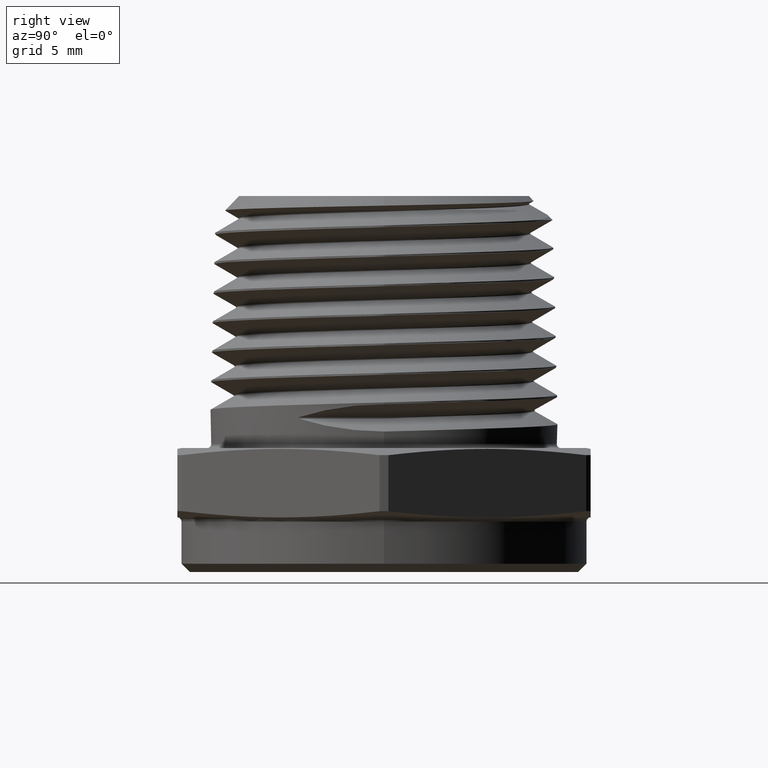
[diagram: clean part render]
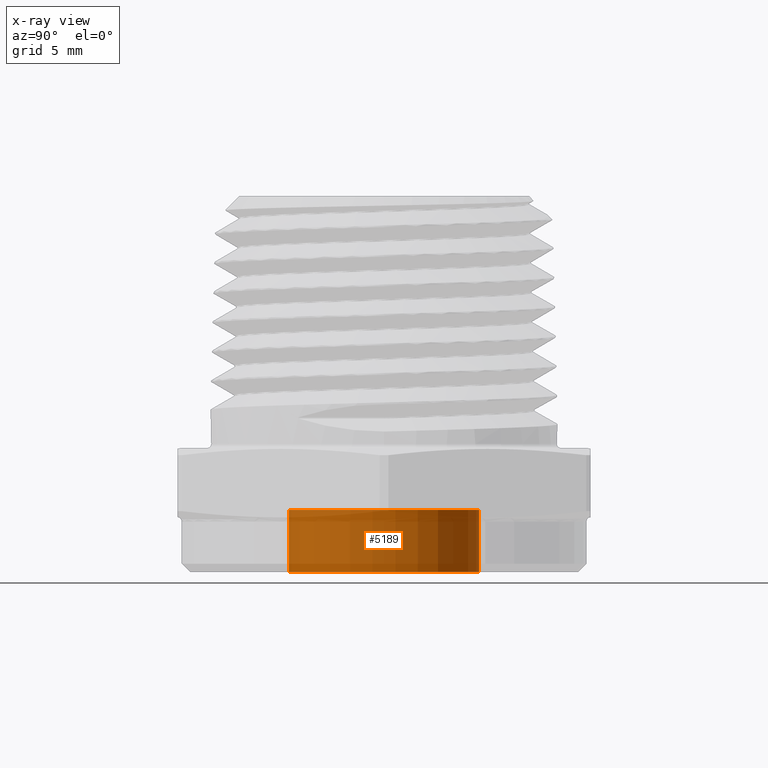
[diagram: x-ray — body ghosted, one internal face saturated and labeled with its STEP entity id]
A machine part, right view, then the same camera in x-ray: the body is ghosted and one INTERNAL B-rep face — a face not visible from any outside direction — is saturated and labeled: STEP entity #5189.
In plain terms, the highlighted cylindrical surface (partial cylindrical patch) has radius 5.842 mm, axis along (-0, -0, 1).
Its self-contained STEP definition (entity closure, byte-faithful):
#230 = VERTEX_POINT ( 'NONE', #4884 ) ;
#232 = VERTEX_POINT ( 'NONE', #4886 ) ;
#233 = VERTEX_POINT ( 'NONE', #4887 ) ;
#234 = VERTEX_POINT ( 'NONE', #4888 ) ;
#300 = EDGE_LOOP ( 'NONE', ( #3851, #3850, #314, #305 ) ) ;
#305 = ORIENTED_EDGE ( 'NONE', *, *, #2914, .F. ) ;
#314 = ORIENTED_EDGE ( 'NONE', *, *, #2915, .T. ) ;
#2340 = CARTESIAN_POINT ( 'NONE',  ( 0.0000000000000000000, 0.1499999999999999900, 0.0000000000000000000 ) ) ;
#2399 = DIRECTION ( 'NONE',  ( -0.0000000000000000000, -1.000000000000000000, -0.0000000000000000000 ) ) ;
#2433 = DIRECTION ( 'NONE',  ( 0.0000000000000000000, 0.0000000000000000000, -1.000000000000000000 ) ) ;
#2497 = AXIS2_PLACEMENT_3D ( 'NONE', #2340, #2399, #2433 ) ;
#2622 = CIRCLE ( 'NONE', #3053, 0.2300000000000000100 ) ;
#2632 = VECTOR ( 'NONE', #4899, 39.37007874015748100 ) ;
#2634 = VECTOR ( 'NONE', #4897, 39.37007874015748100 ) ;
#2635 = LINE ( 'NONE', #4895, #2634 ) ;
#2636 = CIRCLE ( 'NONE', #3052, 0.2300000000000000100 ) ;
#2637 = LINE ( 'NONE', #4896, #2632 ) ;
#2782 = FACE_OUTER_BOUND ( 'NONE', #300, .T. ) ;
#2785 = CYLINDRICAL_SURFACE ( 'NONE', #2497, 0.2300000000000000100 ) ;
#2913 = EDGE_CURVE ( 'NONE', #232, #233, #2635, .T. ) ;
#2914 = EDGE_CURVE ( 'NONE', #230, #234, #2637, .T. ) ;
#2915 = EDGE_CURVE ( 'NONE', #233, #234, #2636, .T. ) ;
#2916 = EDGE_CURVE ( 'NONE', #232, #230, #2622, .T. ) ;
#3052 = AXIS2_PLACEMENT_3D ( 'NONE', #4900, #4901, #4902 ) ;
#3053 = AXIS2_PLACEMENT_3D ( 'NONE', #4904, #4905, #4906 ) ;
#3850 = ORIENTED_EDGE ( 'NONE', *, *, #2913, .T. ) ;
#3851 = ORIENTED_EDGE ( 'NONE', *, *, #2916, .F. ) ;
#4884 = CARTESIAN_POINT ( 'NONE',  ( 0.0000000000000000000, 0.1499999999999999900, -0.2300000000000000100 ) ) ;
#4886 = CARTESIAN_POINT ( 'NONE',  ( 2.816687638038911700E-017, 0.1499999999999999900, 0.2300000000000000100 ) ) ;
#4887 = CARTESIAN_POINT ( 'NONE',  ( 2.816687638038911700E-017, 0.0000000000000000000, 0.2300000000000000100 ) ) ;
#4888 = CARTESIAN_POINT ( 'NONE',  ( 0.0000000000000000000, 0.0000000000000000000, -0.2300000000000000100 ) ) ;
#4895 = CARTESIAN_POINT ( 'NONE',  ( 2.816687638038911700E-017, 0.1499999999999999900, 0.2300000000000000100 ) ) ;
#4896 = CARTESIAN_POINT ( 'NONE',  ( 0.0000000000000000000, 0.1499999999999999900, -0.2300000000000000100 ) ) ;
#4897 = DIRECTION ( 'NONE',  ( -0.0000000000000000000, -1.000000000000000000, -0.0000000000000000000 ) ) ;
#4899 = DIRECTION ( 'NONE',  ( -0.0000000000000000000, -1.000000000000000000, -0.0000000000000000000 ) ) ;
#4900 = CARTESIAN_POINT ( 'NONE',  ( 0.0000000000000000000, 0.0000000000000000000, 0.0000000000000000000 ) ) ;
#4901 = DIRECTION ( 'NONE',  ( 0.0000000000000000000, 1.000000000000000000, 0.0000000000000000000 ) ) ;
#4902 = DIRECTION ( 'NONE',  ( 0.0000000000000000000, 0.0000000000000000000, 1.000000000000000000 ) ) ;
#4904 = CARTESIAN_POINT ( 'NONE',  ( 0.0000000000000000000, 0.1499999999999999900, 0.0000000000000000000 ) ) ;
#4905 = DIRECTION ( 'NONE',  ( 0.0000000000000000000, 1.000000000000000000, 0.0000000000000000000 ) ) ;
#4906 = DIRECTION ( 'NONE',  ( 0.0000000000000000000, 0.0000000000000000000, 1.000000000000000000 ) ) ;
#5189 = ADVANCED_FACE ( 'NONE', ( #2782 ), #2785, .T. ) ;